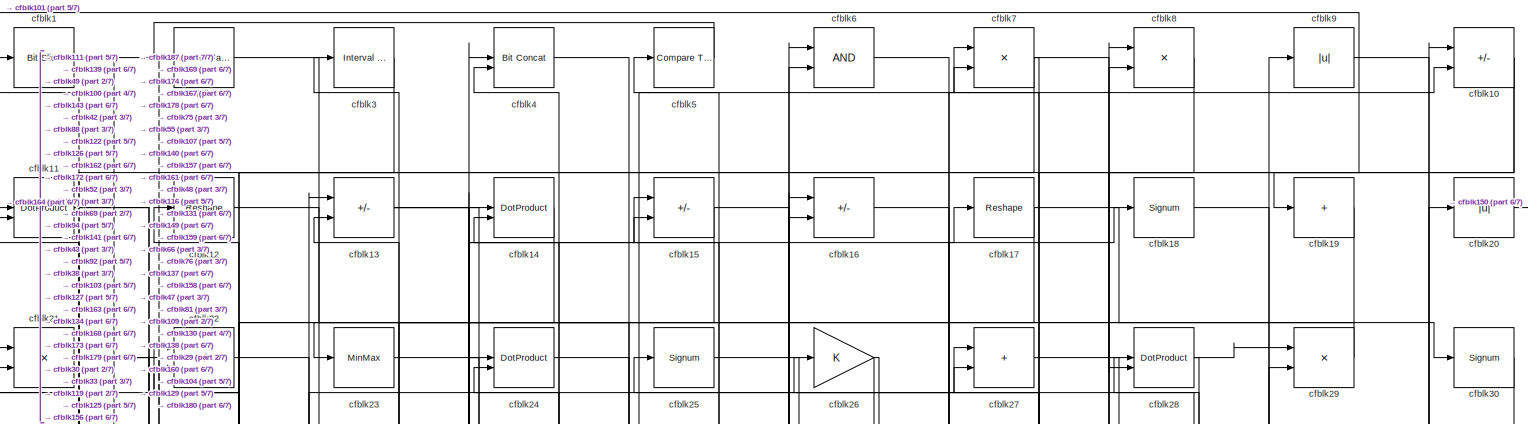
[diagram: root canvas - part 1/7, full width, top band]
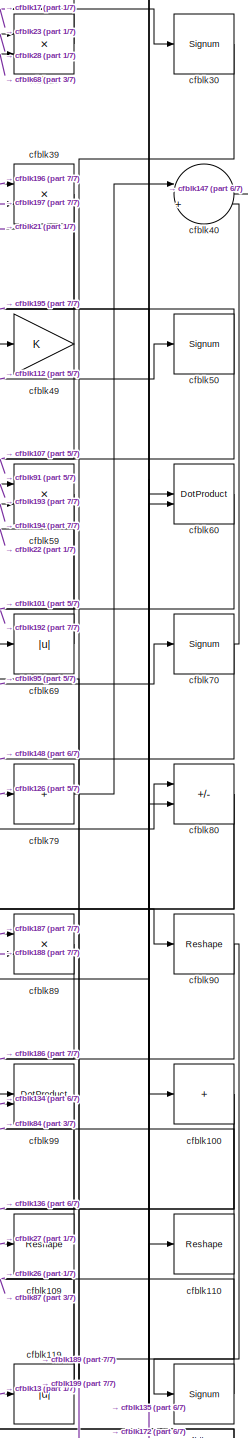
[diagram: root canvas - part 2/7, middle right region]
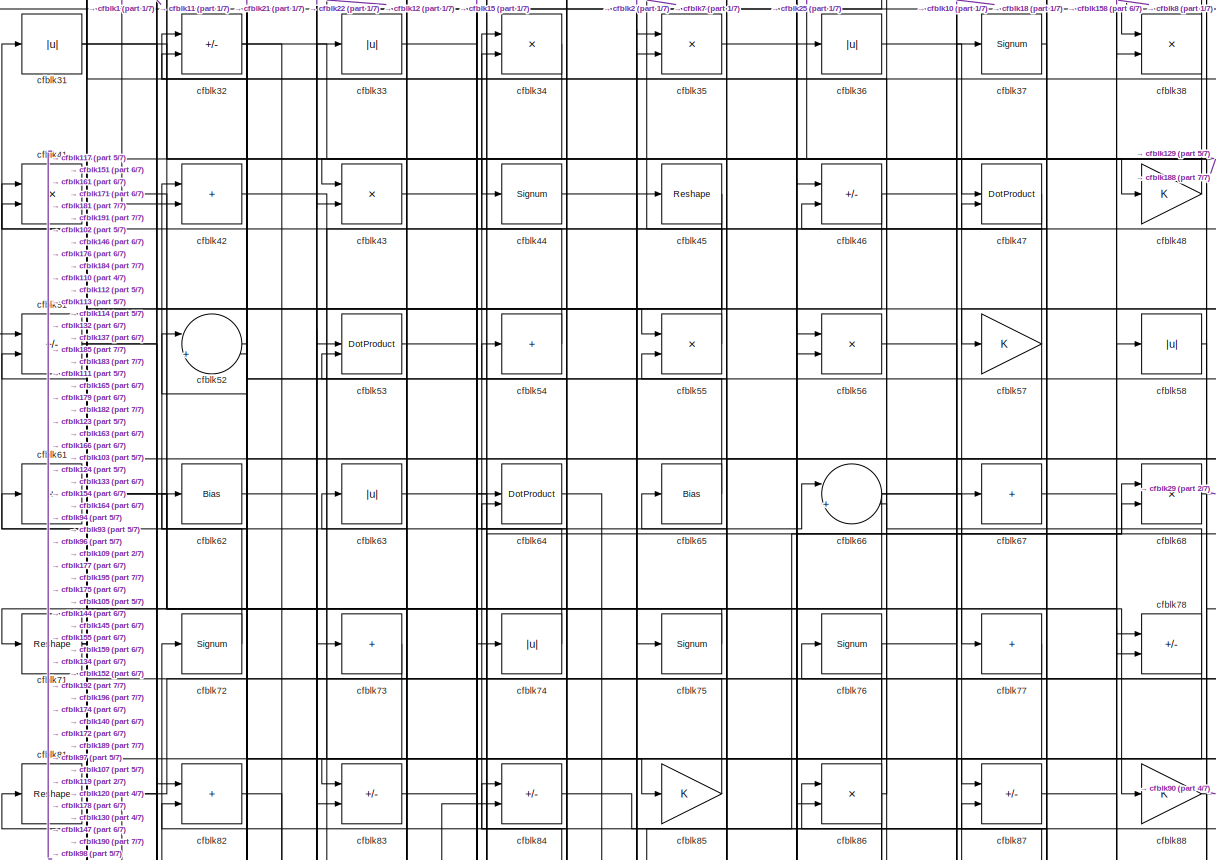
[diagram: root canvas - part 3/7, full width, top band]
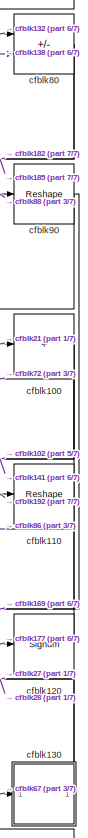
[diagram: root canvas - part 4/7, middle right region]
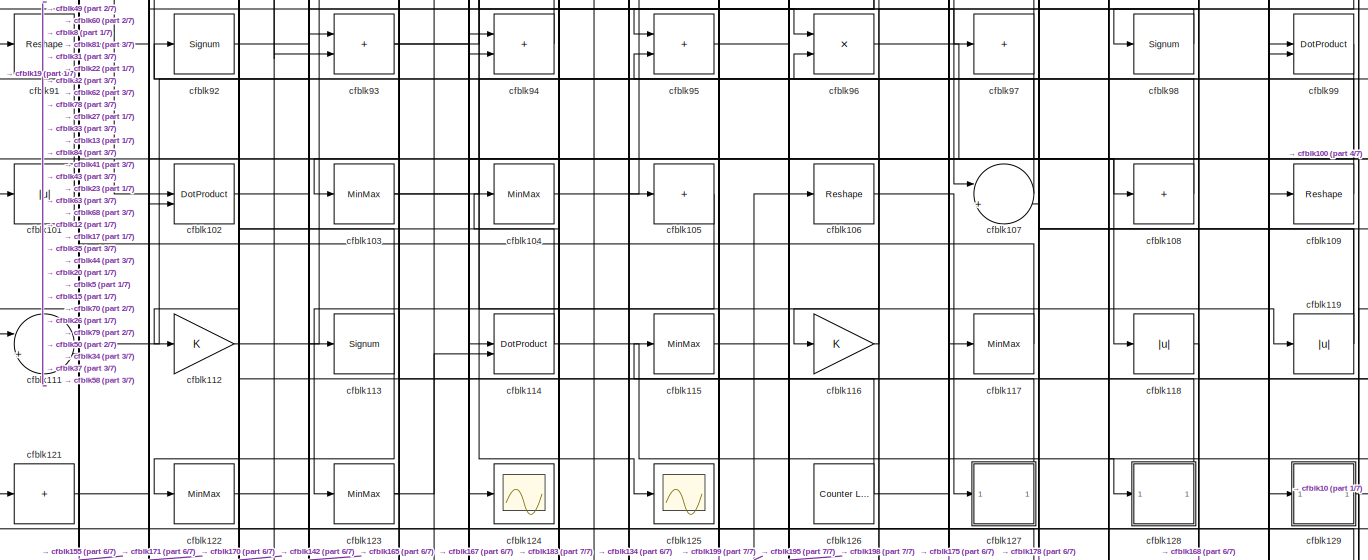
[diagram: root canvas - part 5/7, full width, middle band]
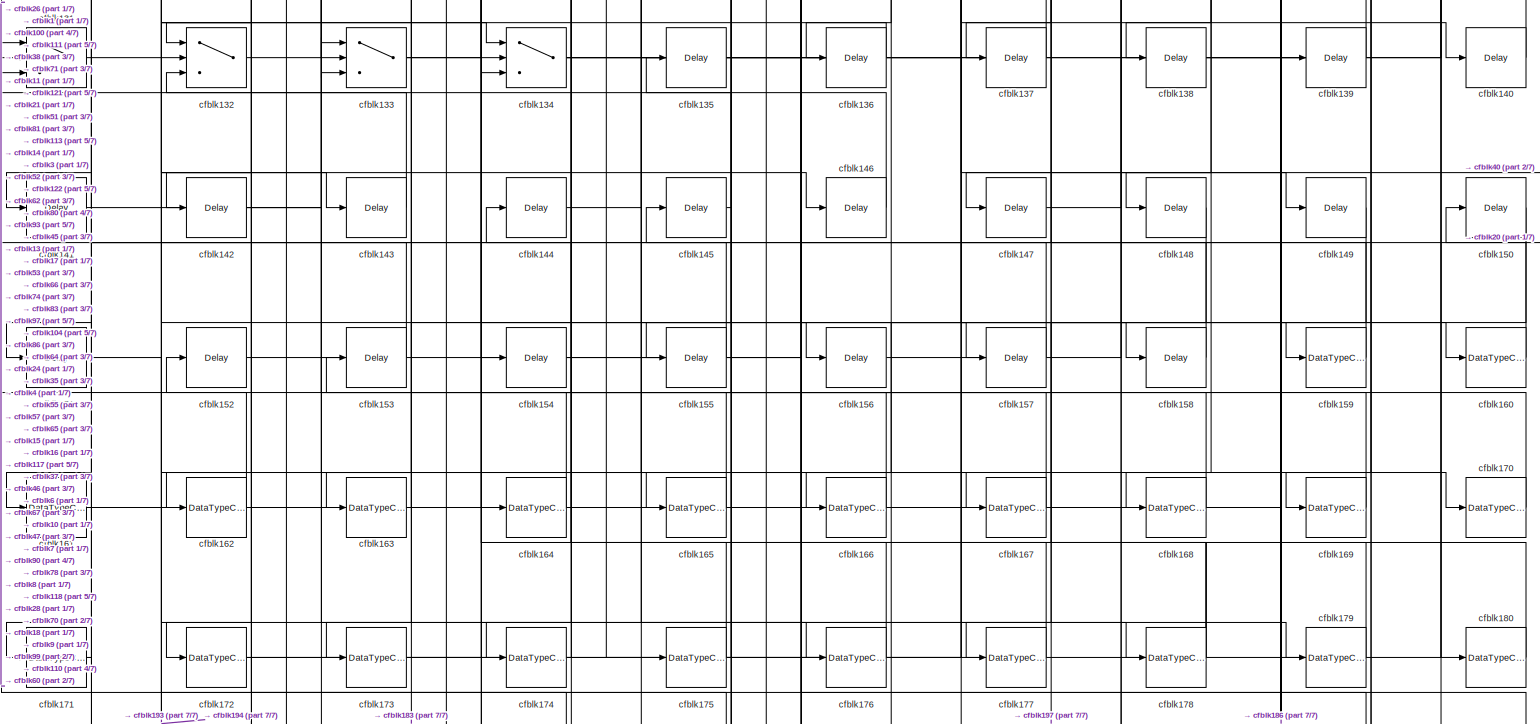
[diagram: root canvas - part 6/7, full width, bottom band]
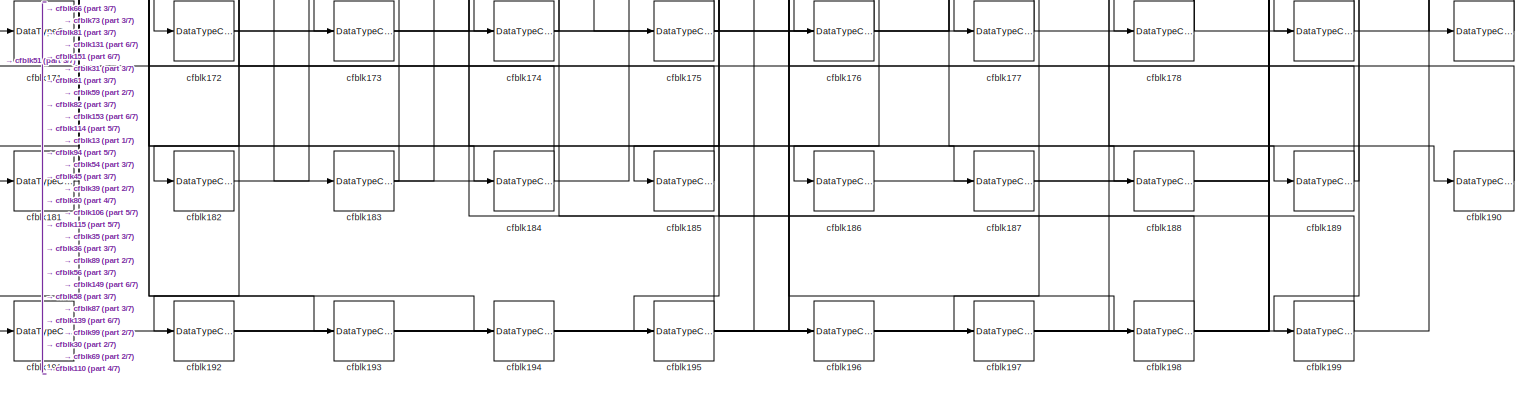
[diagram: root canvas - part 7/7, full width, bottom band]
MODEL slx_c676f2fa67cb
KIND model
CONFIG AbsTol = auto
CONFIG EnableMultiTasking = off
CONFIG FixedStep = auto
CONFIG MaxStep = auto
CONFIG MinStep = auto
CONFIG RelTol = 1e-3
CONFIG SampleTimeConstraint = Unconstrained
CONFIG SolverName = VariableStepAuto
CONFIG StartTime = 0.0
CONFIG StopTime = 10.0
BLOCK [Reference] cfblk1  REF=hdlsllib/Logic and Bit
Operations/Bit Slice
  SourceBlock = hdlsllib/Logic and Bit\nOperations/Bit Slice
  SourceType = Bit Slice
BLOCK [Sum] cfblk10
  IconShape = rectangular
  Inputs = +-
BLOCK [Sum] cfblk100
  IconShape = rectangular
  Inputs = +
BLOCK [Abs] cfblk101
  SaturateOnIntegerOverflow = off
BLOCK [DotProduct] cfblk102
  OutDataTypeStr = Inherit: Inherit via internal rule
BLOCK [MinMax] cfblk103
BLOCK [MinMax] cfblk104
BLOCK [Sum] cfblk105
  IconShape = rectangular
  Inputs = +
BLOCK [Reshape] cfblk106
BLOCK [Sum] cfblk107
  Inputs = |++
BLOCK [Sum] cfblk108
  IconShape = rectangular
  Inputs = +
BLOCK [Reshape] cfblk109
BLOCK [DotProduct] cfblk11
  OutDataTypeStr = Inherit: Inherit via internal rule
BLOCK [Reshape] cfblk110
BLOCK [Sum] cfblk111
  Inputs = |++
BLOCK [Gain] cfblk112
BLOCK [Signum] cfblk113
BLOCK [DotProduct] cfblk114
  OutDataTypeStr = Inherit: Inherit via internal rule
BLOCK [MinMax] cfblk115
BLOCK [Gain] cfblk116
BLOCK [MinMax] cfblk117
BLOCK [Abs] cfblk118
  SaturateOnIntegerOverflow = off
BLOCK [Abs] cfblk119
  SaturateOnIntegerOverflow = off
BLOCK [Reshape] cfblk12
BLOCK [Signum] cfblk120
BLOCK [Sum] cfblk121
  IconShape = rectangular
  Inputs = +
BLOCK [MinMax] cfblk122
BLOCK [MinMax] cfblk123
BLOCK [Scope] cfblk124
  Floating = off
  NumInputPorts = 1
  ScopeSpecificationString = Simulink.scopes.TimeScopeBlockCfg('CurrentConfiguration', extmgr.ConfigurationSet(extmgr.Configuration('Core','General UI',true),extmgr.Configuration('Core','Source UI',true),extmgr.Configuration('Sources','WiredSimulink',true,'DataLoggingVariableName','ScopeData2','DataLoggingSaveFormat','Array','DataLoggingLimitDataPoints',true,'DataLoggingDecimation','1'),extmgr.Configuration('Visuals','Time Do...<+868ch>
BLOCK [Scope] cfblk125
  Floating = off
  NumInputPorts = 1
  ScopeSpecificationString = Simulink.scopes.TimeScopeBlockCfg('CurrentConfiguration', extmgr.ConfigurationSet(extmgr.Configuration('Core','General UI',true),extmgr.Configuration('Core','Source UI',true),extmgr.Configuration('Sources','WiredSimulink',true,'DataLoggingVariableName','ScopeData2','DataLoggingSaveFormat','Array','DataLoggingLimitDataPoints',true,'DataLoggingDecimation','1'),extmgr.Configuration('Visuals','Time Do...<+868ch>
BLOCK [Reference] cfblk126  REF=hdlsllib/Sources/Counter
Limited
  SourceBlock = hdlsllib/Sources/Counter\nLimited
  SourceType = Counter Limited
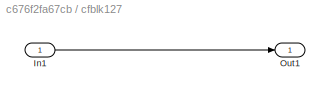
BLOCK [SubSystem] cfblk127
  LibrarySourceBlock = hdlsllib/Ports &\nSubsystems/Subsystem
BLOCK [Inport] cfblk127/In1
BLOCK [Outport] cfblk127/Out1
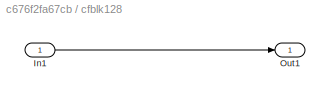
BLOCK [SubSystem] cfblk128
  LibrarySourceBlock = hdlsllib/Ports &\nSubsystems/Subsystem
BLOCK [Inport] cfblk128/In1
BLOCK [Outport] cfblk128/Out1
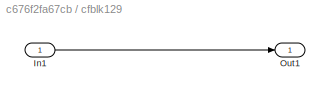
BLOCK [SubSystem] cfblk129
  LibrarySourceBlock = hdlsllib/Ports &\nSubsystems/Subsystem
BLOCK [Inport] cfblk129/In1
BLOCK [Outport] cfblk129/Out1
BLOCK [Sum] cfblk13
  IconShape = rectangular
  Inputs = +-
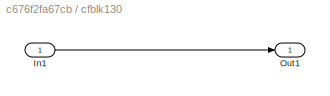
BLOCK [SubSystem] cfblk130
  LibrarySourceBlock = hdlsllib/Ports &\nSubsystems/Subsystem
BLOCK [Inport] cfblk130/In1
BLOCK [Outport] cfblk130/Out1
BLOCK [Switch] cfblk131
  InputSameDT = off
  SaturateOnIntegerOverflow = off
BLOCK [Switch] cfblk132
  InputSameDT = off
  SaturateOnIntegerOverflow = off
BLOCK [Switch] cfblk133
  InputSameDT = off
  SaturateOnIntegerOverflow = off
BLOCK [Switch] cfblk134
  InputSameDT = off
  SaturateOnIntegerOverflow = off
BLOCK [Delay] cfblk135
  InputPortMap = u0
  SampleTime = 1
BLOCK [Delay] cfblk136
  InputPortMap = u0
  SampleTime = 1
BLOCK [Delay] cfblk137
  InputPortMap = u0
  SampleTime = 1
BLOCK [Delay] cfblk138
  InputPortMap = u0
  SampleTime = 1
BLOCK [Delay] cfblk139
  InputPortMap = u0
  SampleTime = 1
BLOCK [DotProduct] cfblk14
  OutDataTypeStr = Inherit: Inherit via internal rule
BLOCK [Delay] cfblk140
  InputPortMap = u0
  SampleTime = 1
BLOCK [Delay] cfblk141
  InputPortMap = u0
  SampleTime = 1
BLOCK [Delay] cfblk142
  InputPortMap = u0
  SampleTime = 1
BLOCK [Delay] cfblk143
  InputPortMap = u0
  SampleTime = 1
BLOCK [Delay] cfblk144
  InputPortMap = u0
  SampleTime = 1
BLOCK [Delay] cfblk145
  InputPortMap = u0
  SampleTime = 1
BLOCK [Delay] cfblk146
  InputPortMap = u0
  SampleTime = 1
BLOCK [Delay] cfblk147
  InputPortMap = u0
  SampleTime = 1
BLOCK [Delay] cfblk148
  InputPortMap = u0
  SampleTime = 1
BLOCK [Delay] cfblk149
  InputPortMap = u0
  SampleTime = 1
BLOCK [Sum] cfblk15
  IconShape = rectangular
  Inputs = +-
BLOCK [Delay] cfblk150
  InputPortMap = u0
  SampleTime = 1
BLOCK [Delay] cfblk151
  InputPortMap = u0
  SampleTime = 1
BLOCK [Delay] cfblk152
  InputPortMap = u0
  SampleTime = 1
BLOCK [Delay] cfblk153
  InputPortMap = u0
  SampleTime = 1
BLOCK [Delay] cfblk154
  InputPortMap = u0
  SampleTime = 1
BLOCK [Delay] cfblk155
  InputPortMap = u0
  SampleTime = 1
BLOCK [Delay] cfblk156
  InputPortMap = u0
  SampleTime = 1
BLOCK [Delay] cfblk157
  InputPortMap = u0
  SampleTime = 1
BLOCK [Delay] cfblk158
  InputPortMap = u0
  SampleTime = 1
BLOCK [DataTypeConversion] cfblk159
  OutDataTypeStr = uint8
  RndMeth = Floor
  SaturateOnIntegerOverflow = off
BLOCK [Sum] cfblk16
  IconShape = rectangular
  Inputs = +-
BLOCK [DataTypeConversion] cfblk160
  OutDataTypeStr = uint8
  RndMeth = Floor
  SaturateOnIntegerOverflow = off
BLOCK [DataTypeConversion] cfblk161
  OutDataTypeStr = uint8
  RndMeth = Floor
  SaturateOnIntegerOverflow = off
BLOCK [DataTypeConversion] cfblk162
  RndMeth = Floor
  SaturateOnIntegerOverflow = off
BLOCK [DataTypeConversion] cfblk163
  OutDataTypeStr = uint8
  RndMeth = Floor
  SaturateOnIntegerOverflow = off
BLOCK [DataTypeConversion] cfblk164
  OutDataTypeStr = uint8
  RndMeth = Floor
  SaturateOnIntegerOverflow = off
BLOCK [DataTypeConversion] cfblk165
  OutDataTypeStr = uint8
  RndMeth = Floor
  SaturateOnIntegerOverflow = off
BLOCK [DataTypeConversion] cfblk166
  OutDataTypeStr = uint8
  RndMeth = Floor
  SaturateOnIntegerOverflow = off
BLOCK [DataTypeConversion] cfblk167
  OutDataTypeStr = uint8
  RndMeth = Floor
  SaturateOnIntegerOverflow = off
BLOCK [DataTypeConversion] cfblk168
  OutDataTypeStr = uint8
  RndMeth = Floor
  SaturateOnIntegerOverflow = off
BLOCK [DataTypeConversion] cfblk169
  OutDataTypeStr = uint8
  RndMeth = Floor
  SaturateOnIntegerOverflow = off
BLOCK [Reshape] cfblk17
BLOCK [DataTypeConversion] cfblk170
  OutDataTypeStr = uint8
  RndMeth = Floor
  SaturateOnIntegerOverflow = off
BLOCK [DataTypeConversion] cfblk171
  OutDataTypeStr = uint8
  RndMeth = Floor
  SaturateOnIntegerOverflow = off
BLOCK [DataTypeConversion] cfblk172
  RndMeth = Floor
  SaturateOnIntegerOverflow = off
BLOCK [DataTypeConversion] cfblk173
  OutDataTypeStr = uint8
  RndMeth = Floor
  SaturateOnIntegerOverflow = off
BLOCK [DataTypeConversion] cfblk174
  OutDataTypeStr = uint8
  RndMeth = Floor
  SaturateOnIntegerOverflow = off
BLOCK [DataTypeConversion] cfblk175
  RndMeth = Floor
  SaturateOnIntegerOverflow = off
BLOCK [DataTypeConversion] cfblk176
  OutDataTypeStr = uint8
  RndMeth = Floor
  SaturateOnIntegerOverflow = off
BLOCK [DataTypeConversion] cfblk177
  OutDataTypeStr = uint8
  RndMeth = Floor
  SaturateOnIntegerOverflow = off
BLOCK [DataTypeConversion] cfblk178
  RndMeth = Floor
  SaturateOnIntegerOverflow = off
BLOCK [DataTypeConversion] cfblk179
  OutDataTypeStr = uint8
  RndMeth = Floor
  SaturateOnIntegerOverflow = off
BLOCK [Signum] cfblk18
BLOCK [DataTypeConversion] cfblk180
  OutDataTypeStr = uint8
  RndMeth = Floor
  SaturateOnIntegerOverflow = off
BLOCK [DataTypeConversion] cfblk181
  OutDataTypeStr = uint8
  RndMeth = Floor
  SaturateOnIntegerOverflow = off
BLOCK [DataTypeConversion] cfblk182
  OutDataTypeStr = uint8
  RndMeth = Floor
  SaturateOnIntegerOverflow = off
BLOCK [DataTypeConversion] cfblk183
  RndMeth = Floor
  SaturateOnIntegerOverflow = off
BLOCK [DataTypeConversion] cfblk184
  OutDataTypeStr = uint8
  RndMeth = Floor
  SaturateOnIntegerOverflow = off
BLOCK [DataTypeConversion] cfblk185
  OutDataTypeStr = uint8
  RndMeth = Floor
  SaturateOnIntegerOverflow = off
BLOCK [DataTypeConversion] cfblk186
  OutDataTypeStr = uint8
  RndMeth = Floor
  SaturateOnIntegerOverflow = off
BLOCK [DataTypeConversion] cfblk187
  OutDataTypeStr = uint8
  RndMeth = Floor
  SaturateOnIntegerOverflow = off
BLOCK [DataTypeConversion] cfblk188
  OutDataTypeStr = uint8
  RndMeth = Floor
  SaturateOnIntegerOverflow = off
BLOCK [DataTypeConversion] cfblk189
  RndMeth = Floor
  SaturateOnIntegerOverflow = off
BLOCK [Sum] cfblk19
  IconShape = rectangular
  Inputs = +
BLOCK [DataTypeConversion] cfblk190
  OutDataTypeStr = uint8
  RndMeth = Floor
  SaturateOnIntegerOverflow = off
BLOCK [DataTypeConversion] cfblk191
  OutDataTypeStr = uint8
  RndMeth = Floor
  SaturateOnIntegerOverflow = off
BLOCK [DataTypeConversion] cfblk192
  RndMeth = Floor
  SaturateOnIntegerOverflow = off
BLOCK [DataTypeConversion] cfblk193
  OutDataTypeStr = uint8
  RndMeth = Floor
  SaturateOnIntegerOverflow = off
BLOCK [DataTypeConversion] cfblk194
  OutDataTypeStr = uint8
  RndMeth = Floor
  SaturateOnIntegerOverflow = off
BLOCK [DataTypeConversion] cfblk195
  RndMeth = Floor
  SaturateOnIntegerOverflow = off
BLOCK [DataTypeConversion] cfblk196
  OutDataTypeStr = uint8
  RndMeth = Floor
  SaturateOnIntegerOverflow = off
BLOCK [DataTypeConversion] cfblk197
  OutDataTypeStr = uint8
  RndMeth = Floor
  SaturateOnIntegerOverflow = off
BLOCK [DataTypeConversion] cfblk198
  OutDataTypeStr = uint8
  RndMeth = Floor
  SaturateOnIntegerOverflow = off
BLOCK [DataTypeConversion] cfblk199
  OutDataTypeStr = uint8
  RndMeth = Floor
  SaturateOnIntegerOverflow = off
BLOCK [Reference] cfblk2  REF=hdlsllib/Logic and Bit
Operations/Detect Fall
Negative
  SourceBlock = hdlsllib/Logic and Bit\nOperations/Detect Fall\nNegative
  SourceType = Detect Fall Negative
BLOCK [Abs] cfblk20
  SaturateOnIntegerOverflow = off
BLOCK [Product] cfblk21
  Inputs = */
  RndMeth = Zero
  SaturateOnIntegerOverflow = on
BLOCK [Sum] cfblk22
  IconShape = rectangular
  Inputs = +-
BLOCK [MinMax] cfblk23
BLOCK [DotProduct] cfblk24
  OutDataTypeStr = Inherit: Inherit via internal rule
BLOCK [Signum] cfblk25
BLOCK [Gain] cfblk26
BLOCK [Sum] cfblk27
  IconShape = rectangular
BLOCK [DotProduct] cfblk28
  OutDataTypeStr = Inherit: Inherit via internal rule
BLOCK [Product] cfblk29
  Inputs = */
  RndMeth = Zero
  SaturateOnIntegerOverflow = on
BLOCK [Reference] cfblk3  REF=hdlsllib/Logic and Bit
Operations/Interval Test
  SourceBlock = hdlsllib/Logic and Bit\nOperations/Interval Test
  SourceType = Interval Test
BLOCK [Signum] cfblk30
BLOCK [Abs] cfblk31
  SaturateOnIntegerOverflow = off
BLOCK [Sum] cfblk32
  IconShape = rectangular
  Inputs = +-
BLOCK [Abs] cfblk33
  SaturateOnIntegerOverflow = off
BLOCK [Product] cfblk34
  Inputs = */
  RndMeth = Zero
  SaturateOnIntegerOverflow = on
BLOCK [Product] cfblk35
  Inputs = */
  RndMeth = Zero
  SaturateOnIntegerOverflow = on
BLOCK [Abs] cfblk36
  SaturateOnIntegerOverflow = off
BLOCK [Signum] cfblk37
BLOCK [Product] cfblk38
  Inputs = */
  RndMeth = Zero
  SaturateOnIntegerOverflow = on
BLOCK [Product] cfblk39
  Inputs = */
  RndMeth = Zero
  SaturateOnIntegerOverflow = on
BLOCK [Reference] cfblk4  REF=hdlsllib/Logic and Bit
Operations/Bit Concat
  SourceBlock = hdlsllib/Logic and Bit\nOperations/Bit Concat
  SourceType = Bit Concat
BLOCK [Sum] cfblk40
  Inputs = |++
BLOCK [Product] cfblk41
  Inputs = */
  RndMeth = Zero
  SaturateOnIntegerOverflow = on
BLOCK [Sum] cfblk42
  IconShape = rectangular
BLOCK [Product] cfblk43
  Inputs = */
  RndMeth = Zero
  SaturateOnIntegerOverflow = on
BLOCK [Signum] cfblk44
BLOCK [Reshape] cfblk45
BLOCK [Sum] cfblk46
  IconShape = rectangular
  Inputs = +-
BLOCK [DotProduct] cfblk47
  OutDataTypeStr = Inherit: Inherit via internal rule
BLOCK [Gain] cfblk48
BLOCK [Gain] cfblk49
BLOCK [Reference] cfblk5  REF=hdlsllib/Logic and Bit
Operations/Compare
To Zero
  SourceBlock = hdlsllib/Logic and Bit\nOperations/Compare\nTo Zero
  SourceType = Compare To Zero
BLOCK [Signum] cfblk50
BLOCK [Sum] cfblk51
  IconShape = rectangular
  Inputs = +-
BLOCK [Sum] cfblk52
  Inputs = |++
BLOCK [DotProduct] cfblk53
  OutDataTypeStr = Inherit: Inherit via internal rule
BLOCK [Sum] cfblk54
  IconShape = rectangular
  Inputs = +
BLOCK [Product] cfblk55
  Inputs = */
  RndMeth = Zero
  SaturateOnIntegerOverflow = on
BLOCK [Product] cfblk56
  Inputs = */
  RndMeth = Zero
  SaturateOnIntegerOverflow = on
BLOCK [Gain] cfblk57
BLOCK [Abs] cfblk58
  SaturateOnIntegerOverflow = off
BLOCK [Product] cfblk59
  Inputs = */
  RndMeth = Zero
  SaturateOnIntegerOverflow = on
BLOCK [Logic] cfblk6
  AllPortsSameDT = off
  OutDataTypeStr = boolean
BLOCK [DotProduct] cfblk60
  OutDataTypeStr = Inherit: Inherit via internal rule
BLOCK [Sum] cfblk61
  IconShape = rectangular
  Inputs = +
BLOCK [Bias] cfblk62
  Bias = 0.0
  SaturateOnIntegerOverflow = off
BLOCK [Abs] cfblk63
  SaturateOnIntegerOverflow = off
BLOCK [DotProduct] cfblk64
  OutDataTypeStr = Inherit: Inherit via internal rule
BLOCK [Bias] cfblk65
  Bias = 0.0
  SaturateOnIntegerOverflow = off
BLOCK [Sum] cfblk66
  Inputs = |++
BLOCK [Sum] cfblk67
  IconShape = rectangular
  Inputs = +
BLOCK [Product] cfblk68
  Inputs = */
  RndMeth = Zero
  SaturateOnIntegerOverflow = on
BLOCK [Abs] cfblk69
  SaturateOnIntegerOverflow = off
BLOCK [Product] cfblk7
  Inputs = */
  RndMeth = Zero
  SaturateOnIntegerOverflow = on
BLOCK [Signum] cfblk70
BLOCK [Reshape] cfblk71
BLOCK [Signum] cfblk72
BLOCK [Sum] cfblk73
  IconShape = rectangular
  Inputs = +
BLOCK [Abs] cfblk74
  SaturateOnIntegerOverflow = off
BLOCK [Signum] cfblk75
BLOCK [Signum] cfblk76
BLOCK [Sum] cfblk77
  IconShape = rectangular
  Inputs = +
BLOCK [Sum] cfblk78
  IconShape = rectangular
  Inputs = +-
BLOCK [Sum] cfblk79
  IconShape = rectangular
  Inputs = +
BLOCK [Product] cfblk8
  Inputs = */
  RndMeth = Zero
  SaturateOnIntegerOverflow = on
BLOCK [Sum] cfblk80
  IconShape = rectangular
  Inputs = +-
BLOCK [Reshape] cfblk81
BLOCK [Sum] cfblk82
  IconShape = rectangular
BLOCK [Sum] cfblk83
  IconShape = rectangular
  Inputs = +-
BLOCK [Sum] cfblk84
  IconShape = rectangular
  Inputs = +-
BLOCK [Gain] cfblk85
BLOCK [Product] cfblk86
  Inputs = */
  RndMeth = Zero
  SaturateOnIntegerOverflow = on
BLOCK [Sum] cfblk87
  IconShape = rectangular
  Inputs = +-
BLOCK [Gain] cfblk88
BLOCK [Product] cfblk89
  Inputs = */
  RndMeth = Zero
  SaturateOnIntegerOverflow = on
BLOCK [Abs] cfblk9
  SaturateOnIntegerOverflow = off
BLOCK [Reshape] cfblk90
BLOCK [Reshape] cfblk91
BLOCK [Signum] cfblk92
BLOCK [Sum] cfblk93
  IconShape = rectangular
BLOCK [Sum] cfblk94
  IconShape = rectangular
BLOCK [Sum] cfblk95
  IconShape = rectangular
BLOCK [Product] cfblk96
  Inputs = */
  RndMeth = Zero
  SaturateOnIntegerOverflow = on
BLOCK [Sum] cfblk97
  IconShape = rectangular
  Inputs = +
BLOCK [Signum] cfblk98
BLOCK [DotProduct] cfblk99
  OutDataTypeStr = Inherit: Inherit via internal rule
NET cfblk100:1 -> cfblk102:2, cfblk141:1
LINE cfblk101:1 -> cfblk19:1
LINE cfblk102:1 -> cfblk113:1
NET cfblk103:1 -> cfblk17:1, cfblk35:2
LINE cfblk104:1 -> cfblk20:1
LINE cfblk105:1 -> cfblk123:1
LINE cfblk106:1 -> cfblk127:1
LINE cfblk107:1 -> cfblk5:1
LINE cfblk108:1 -> cfblk92:1
LINE cfblk109:1 -> cfblk84:1
NET cfblk10:1 -> cfblk137:1, cfblk28:2
NET cfblk110:1 -> cfblk169:1, cfblk72:1
LINE cfblk111:1 -> cfblk33:1
LINE cfblk112:1 -> cfblk50:1
NET cfblk113:1 -> cfblk142:1, cfblk32:2
NET cfblk114:1 -> cfblk128:1, cfblk62:1
LINE cfblk115:1 -> cfblk198:1
LINE cfblk116:1 -> cfblk96:2
LINE cfblk117:1 -> cfblk41:1
LINE cfblk118:1 -> cfblk168:1
NET cfblk119:1 -> cfblk26:1, cfblk87:2
NET cfblk11:1 -> cfblk134:1, cfblk55:1
LINE cfblk120:1 -> cfblk86:1
LINE cfblk121:1 -> cfblk170:1
LINE cfblk122:1 -> cfblk165:1
NET cfblk123:1 -> cfblk63:1, cfblk84:2
NET cfblk126:1 -> cfblk22:1, cfblk79:1
LINE cfblk127/In1:1 -> cfblk127/Out1:1
LINE cfblk127:1 -> cfblk13:2
LINE cfblk128/In1:1 -> cfblk128/Out1:1
LINE cfblk128:1 -> cfblk95:2
LINE cfblk129/In1:1 -> cfblk129/Out1:1
LINE cfblk129:1 -> cfblk10:1
LINE cfblk12:1 -> cfblk38:1
LINE cfblk130/In1:1 -> cfblk130/Out1:1
NET cfblk130:1 -> cfblk27:1, cfblk28:1
LINE cfblk131:1 -> cfblk194:1
LINE cfblk132:1 -> cfblk80:1
NET cfblk133:1 -> cfblk66:1, cfblk74:1
NET cfblk134:1 -> cfblk16:2, cfblk67:1, cfblk99:2
LINE cfblk135:1 -> cfblk60:2
LINE cfblk136:1 -> cfblk132:2
LINE cfblk137:1 -> cfblk52:1
LINE cfblk138:1 -> cfblk80:2
LINE cfblk139:1 -> cfblk11:2
NET cfblk13:1 -> cfblk119:1, cfblk156:1, cfblk187:1
LINE cfblk140:1 -> cfblk15:2
LINE cfblk141:1 -> cfblk13:1
LINE cfblk142:1 -> cfblk133:1
LINE cfblk143:1 -> cfblk131:2
LINE cfblk144:1 -> cfblk35:1
LINE cfblk145:1 -> cfblk55:2
LINE cfblk146:1 -> cfblk132:3
LINE cfblk147:1 -> cfblk78:1
LINE cfblk148:1 -> cfblk166:1
LINE cfblk149:1 -> cfblk197:1
LINE cfblk14:1 -> cfblk172:1
LINE cfblk150:1 -> cfblk173:1
LINE cfblk151:1 -> cfblk193:1
LINE cfblk152:1 -> cfblk86:2
LINE cfblk153:1 -> cfblk131:1
LINE cfblk154:1 -> cfblk46:1
LINE cfblk155:1 -> cfblk111:2
LINE cfblk156:1 -> cfblk8:2
LINE cfblk157:1 -> cfblk1:1
LINE cfblk158:1 -> cfblk7:2
LINE cfblk159:1 -> cfblk65:1
NET cfblk15:1 -> cfblk103:1, cfblk157:1
LINE cfblk160:1 -> cfblk6:1
LINE cfblk161:1 -> cfblk6:2
NET cfblk162:1 -> cfblk152:1, cfblk9:1
LINE cfblk163:1 -> cfblk3:1
LINE cfblk164:1 -> cfblk11:1
LINE cfblk165:1 -> cfblk53:1
LINE cfblk166:1 -> cfblk53:2
LINE cfblk167:1 -> cfblk93:1
LINE cfblk168:1 -> cfblk4:1
LINE cfblk169:1 -> cfblk4:2
LINE cfblk16:1 -> cfblk149:1
LINE cfblk170:1 -> cfblk135:1
LINE cfblk171:1 -> cfblk121:1
NET cfblk172:1 -> cfblk37:1, cfblk60:1
LINE cfblk173:1 -> cfblk14:1
LINE cfblk174:1 -> cfblk14:2
NET cfblk175:1 -> cfblk117:1, cfblk144:1, cfblk145:1
LINE cfblk176:1 -> cfblk64:1
LINE cfblk177:1 -> cfblk64:2
NET cfblk178:1 -> cfblk104:1, cfblk16:1, cfblk47:2
LINE cfblk179:1 -> cfblk24:1
NET cfblk17:1 -> cfblk134:3, cfblk30:1
LINE cfblk180:1 -> cfblk24:2
LINE cfblk181:1 -> cfblk81:1
LINE cfblk182:1 -> cfblk73:1
NET cfblk183:1 -> cfblk114:2, cfblk153:1, cfblk45:1
LINE cfblk184:1 -> cfblk82:1
LINE cfblk185:1 -> cfblk82:2
LINE cfblk186:1 -> cfblk139:1
LINE cfblk187:1 -> cfblk89:1
LINE cfblk188:1 -> cfblk89:2
NET cfblk189:1 -> cfblk51:1, cfblk69:1
LINE cfblk18:1 -> cfblk160:1
LINE cfblk190:1 -> cfblk56:1
LINE cfblk191:1 -> cfblk56:2
NET cfblk192:1 -> cfblk110:1, cfblk36:1, cfblk99:1
LINE cfblk193:1 -> cfblk59:1
LINE cfblk194:1 -> cfblk59:2
NET cfblk195:1 -> cfblk106:1, cfblk54:1, cfblk58:1
LINE cfblk196:1 -> cfblk39:1
LINE cfblk197:1 -> cfblk39:2
LINE cfblk198:1 -> cfblk94:1
LINE cfblk199:1 -> cfblk115:1
LINE cfblk19:1 -> cfblk122:1
NET cfblk1:1 -> cfblk42:2, cfblk88:1
LINE cfblk20:1 -> cfblk150:1
NET cfblk21:1 -> cfblk100:1, cfblk143:1
LINE cfblk22:1 -> cfblk43:2
LINE cfblk23:1 -> cfblk125:1
LINE cfblk24:1 -> cfblk178:1
LINE cfblk25:1 -> cfblk48:1
NET cfblk26:1 -> cfblk116:1, cfblk131:3
LINE cfblk27:1 -> cfblk109:1
NET cfblk28:1 -> cfblk138:1, cfblk29:1
LINE cfblk29:1 -> cfblk23:1
LINE cfblk2:1 -> cfblk75:1
LINE cfblk30:1 -> cfblk199:1
NET cfblk31:1 -> cfblk129:1, cfblk188:1
NET cfblk32:1 -> cfblk124:1, cfblk93:2
LINE cfblk33:1 -> cfblk15:1
LINE cfblk34:1 -> cfblk43:1
LINE cfblk35:1 -> cfblk196:1
LINE cfblk36:1 -> cfblk57:1
LINE cfblk37:1 -> cfblk107:2
NET cfblk38:1 -> cfblk171:1, cfblk25:1
LINE cfblk39:1 -> cfblk195:1
LINE cfblk3:1 -> cfblk162:1
LINE cfblk40:1 -> cfblk147:1
LINE cfblk41:1 -> cfblk94:2
LINE cfblk42:1 -> cfblk85:1
LINE cfblk43:1 -> cfblk114:1
LINE cfblk44:1 -> cfblk105:1
NET cfblk45:1 -> cfblk151:1, cfblk163:1
NET cfblk46:1 -> cfblk133:2, cfblk140:1
LINE cfblk47:1 -> cfblk41:2
LINE cfblk48:1 -> cfblk44:1
NET cfblk49:1 -> cfblk21:2, cfblk91:1
LINE cfblk4:1 -> cfblk167:1
NET cfblk50:1 -> cfblk107:1, cfblk49:1
NET cfblk51:1 -> cfblk146:1, cfblk176:1
LINE cfblk52:1 -> cfblk132:1
LINE cfblk53:1 -> cfblk164:1
LINE cfblk54:1 -> cfblk34:2
LINE cfblk55:1 -> cfblk7:1
LINE cfblk56:1 -> cfblk189:1
NET cfblk57:1 -> cfblk155:1, cfblk46:2
LINE cfblk58:1 -> cfblk98:1
LINE cfblk59:1 -> cfblk192:1
LINE cfblk5:1 -> cfblk2:1
LINE cfblk60:1 -> cfblk101:1
NET cfblk61:1 -> cfblk184:1, cfblk78:2, cfblk83:2
LINE cfblk62:1 -> cfblk179:1
LINE cfblk63:1 -> cfblk96:1
LINE cfblk64:1 -> cfblk175:1
LINE cfblk65:1 -> cfblk21:1
NET cfblk66:1 -> cfblk10:2, cfblk191:1, cfblk77:1
LINE cfblk67:1 -> cfblk130:1
LINE cfblk68:1 -> cfblk29:2
LINE cfblk69:1 -> cfblk22:2
LINE cfblk6:1 -> cfblk159:1
NET cfblk70:1 -> cfblk148:1, cfblk40:2
NET cfblk71:1 -> cfblk161:1, cfblk51:2
LINE cfblk72:1 -> cfblk31:1
LINE cfblk73:1 -> cfblk181:1
LINE cfblk74:1 -> cfblk42:1
LINE cfblk75:1 -> cfblk71:1
NET cfblk76:1 -> cfblk18:1, cfblk83:1
LINE cfblk77:1 -> cfblk87:1
NET cfblk78:1 -> cfblk112:1, cfblk32:1
LINE cfblk79:1 -> cfblk40:1
NET cfblk7:1 -> cfblk38:2, cfblk47:1, cfblk52:2
NET cfblk80:1 -> cfblk182:1, cfblk185:1
NET cfblk81:1 -> cfblk102:1, cfblk158:1, cfblk8:1
LINE cfblk82:1 -> cfblk183:1
LINE cfblk83:1 -> cfblk154:1
LINE cfblk84:1 -> cfblk68:1
LINE cfblk85:1 -> cfblk61:1
NET cfblk86:1 -> cfblk133:3, cfblk174:1, cfblk66:2, cfblk76:1
LINE cfblk87:1 -> cfblk190:1
LINE cfblk88:1 -> cfblk90:1
LINE cfblk89:1 -> cfblk186:1
LINE cfblk8:1 -> cfblk111:1
NET cfblk90:1 -> cfblk120:1, cfblk177:1
LINE cfblk91:1 -> cfblk97:1
LINE cfblk92:1 -> cfblk27:2
NET cfblk93:1 -> cfblk108:1, cfblk68:2
LINE cfblk94:1 -> cfblk12:1
LINE cfblk95:1 -> cfblk70:1
LINE cfblk96:1 -> cfblk118:1
NET cfblk97:1 -> cfblk134:2, cfblk34:1
LINE cfblk98:1 -> cfblk95:1
LINE cfblk99:1 -> cfblk136:1
LINE cfblk9:1 -> cfblk180:1
note: NET lines group one-source signal fan-out (src -> all destinations, sorted); 1:1 wires keep LINE
